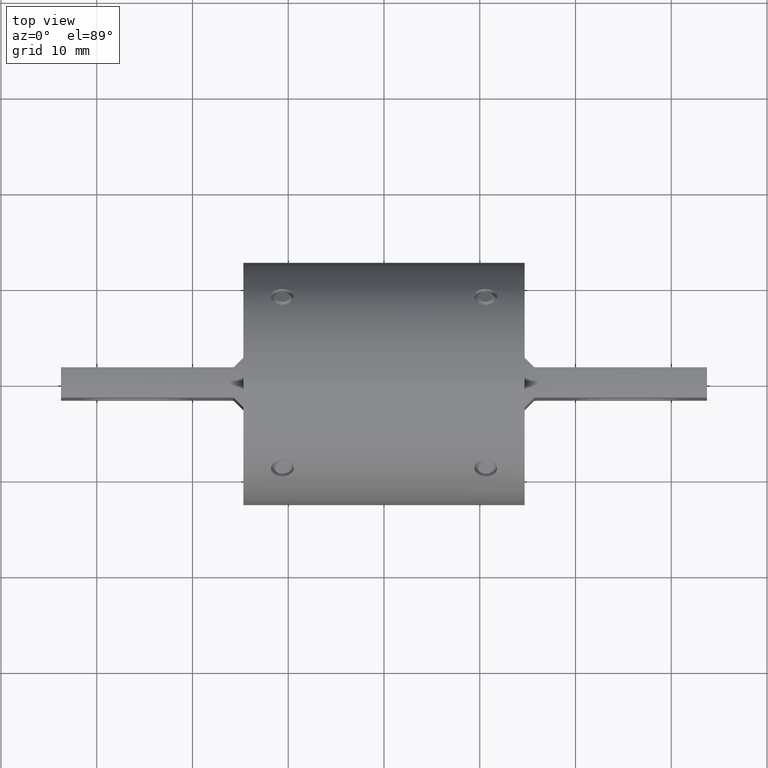
[diagram: clean part render]
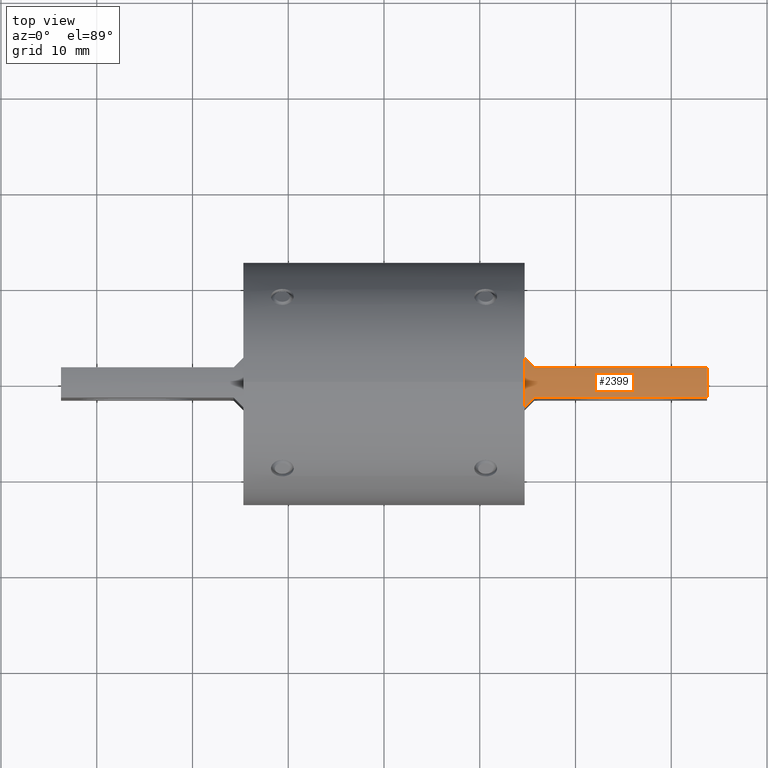
[diagram: same view with one face highlighted and labeled with its STEP entity id]
A machine part, top view. The second image highlights one B-rep face of the part: STEP entity #2399.
In plain terms, the highlighted cylindrical surface (partial cylindrical patch) has radius 9.4234 mm, axis along (1, 0, 0).
Its self-contained STEP definition (entity closure, byte-faithful):
#34 = VERTEX_POINT ( 'NONE', #3655 ) ;
#62 = VERTEX_POINT ( 'NONE', #4473 ) ;
#158 = EDGE_CURVE ( 'NONE', #2267, #1606, #5316, .T. ) ;
#220 = DIRECTION ( 'NONE',  ( 0.0000000000000000000, -1.856119031849641800E-016, -1.000000000000000000 ) ) ;
#247 = CARTESIAN_POINT ( 'NONE',  ( 0.6181000000000007600, -0.06249999999999995800, 0.3656976209930821700 ) ) ;
#321 = CARTESIAN_POINT ( 'NONE',  ( 0.5780999999999999500, 0.0000000000000000000, 0.0000000000000000000 ) ) ;
#344 = ORIENTED_EDGE ( 'NONE', *, *, #1621, .F. ) ;
#403 = CARTESIAN_POINT ( 'NONE',  ( 0.5780999999999999500, 0.1025000000000001300, 0.3565596023107495700 ) ) ;
#517 = AXIS2_PLACEMENT_3D ( 'NONE', #638, #3166, #220 ) ;
#590 = DIRECTION ( 'NONE',  ( 0.0000000000000000000, -1.856119031849641800E-016, -1.000000000000000000 ) ) ;
#638 = CARTESIAN_POINT ( 'NONE',  ( 0.5780999999999999500, 0.0000000000000000000, 0.0000000000000000000 ) ) ;
#868 = LINE ( 'NONE', #4555, #5314 ) ;
#1016 = CARTESIAN_POINT ( 'NONE',  ( 1.328100000000000100, 0.0000000000000000000, 0.0000000000000000000 ) ) ;
#1194 = CARTESIAN_POINT ( 'NONE',  ( 0.5912579185385227200, -0.08934208146147762400, 0.3603421021830239800 ) ) ;
#1606 = VERTEX_POINT ( 'NONE', #1644 ) ;
#1621 = EDGE_CURVE ( 'NONE', #3575, #2396, #4029, .T. ) ;
#1644 = CARTESIAN_POINT ( 'NONE',  ( 0.6181000000000007600, -0.06249999999999995800, 0.3656976209930821700 ) ) ;
#1677 = EDGE_CURVE ( 'NONE', #3575, #62, #4387, .T. ) ;
#2215 = ORIENTED_EDGE ( 'NONE', *, *, #3486, .T. ) ;
#2267 = VERTEX_POINT ( 'NONE', #2811 ) ;
#2396 = VERTEX_POINT ( 'NONE', #2483 ) ;
#2399 = ADVANCED_FACE ( 'NONE', ( #4252 ), #3802, .T. ) ;
#2470 = EDGE_LOOP ( 'NONE', ( #4711, #344, #3457, #3390, #5067, #2215 ) ) ;
#2474 = DIRECTION ( 'NONE',  ( 1.000000000000000000, 0.0000000000000000000, 0.0000000000000000000 ) ) ;
#2483 = CARTESIAN_POINT ( 'NONE',  ( 1.328100000000000100, 0.06249999999999990300, 0.3656976209930821200 ) ) ;
#2606 = AXIS2_PLACEMENT_3D ( 'NONE', #321, #5377, #5233 ) ;
#2696 = CARTESIAN_POINT ( 'NONE',  ( 0.6181000000000007600, 0.06249999999999982000, 0.3656976209930821200 ) ) ;
#2764 = CARTESIAN_POINT ( 'NONE',  ( 0.5780999999999999500, -0.1025000000000002000, 0.3565596023107495700 ) ) ;
#2811 = CARTESIAN_POINT ( 'NONE',  ( 0.5780999999999999500, -0.1025000000000002000, 0.3565596023107495700 ) ) ;
#3122 = EDGE_CURVE ( 'NONE', #2396, #34, #5422, .T. ) ;
#3166 = DIRECTION ( 'NONE',  ( 1.000000000000000000, 0.0000000000000000000, 0.0000000000000000000 ) ) ;
#3329 = CARTESIAN_POINT ( 'NONE',  ( 0.5912579185385226100, 0.08934208146147759600, 0.3603421021830239800 ) ) ;
#3390 = ORIENTED_EDGE ( 'NONE', *, *, #4978, .T. ) ;
#3457 = ORIENTED_EDGE ( 'NONE', *, *, #1677, .T. ) ;
#3486 = EDGE_CURVE ( 'NONE', #1606, #34, #868, .T. ) ;
#3575 = VERTEX_POINT ( 'NONE', #3789 ) ;
#3655 = CARTESIAN_POINT ( 'NONE',  ( 1.328100000000000100, -0.06249999999999995800, 0.3656976209930821700 ) ) ;
#3656 = AXIS2_PLACEMENT_3D ( 'NONE', #1016, #4776, #590 ) ;
#3789 = CARTESIAN_POINT ( 'NONE',  ( 0.6181000000000007600, 0.06249999999999982000, 0.3656976209930821200 ) ) ;
#3802 = CYLINDRICAL_SURFACE ( 'NONE', #2606, 0.3709999999999998900 ) ;
#4029 = LINE ( 'NONE', #4836, #5129 ) ;
#4165 = CARTESIAN_POINT ( 'NONE',  ( 0.6046048662956359200, 0.07599513370436442000, 0.3633912186319393500 ) ) ;
#4240 = DIRECTION ( 'NONE',  ( 1.000000000000000000, 0.0000000000000000000, 0.0000000000000000000 ) ) ;
#4252 = FACE_OUTER_BOUND ( 'NONE', #2470, .T. ) ;
#4387 =( BOUNDED_CURVE ( )  B_SPLINE_CURVE ( 3, ( #2696, #4165, #3329, #403 ),
 .UNSPECIFIED., .F., .T. ) 
 B_SPLINE_CURVE_WITH_KNOTS ( ( 4, 4 ),
 ( 1.740067122859722600, 1.850717950187012400 ),
 .UNSPECIFIED. ) 
 CURVE ( )  GEOMETRIC_REPRESENTATION_ITEM ( )  RATIONAL_B_SPLINE_CURVE ( ( 1.000000000000000000, 0.9989799597610233800, 0.9989799597610233800, 1.000000000000000000 ) ) 
 REPRESENTATION_ITEM ( '' )  );
#4473 = CARTESIAN_POINT ( 'NONE',  ( 0.5780999999999999500, 0.1025000000000001300, 0.3565596023107495700 ) ) ;
#4555 = CARTESIAN_POINT ( 'NONE',  ( 0.5780999999999999500, -0.06249999999999995800, 0.3656976209930821700 ) ) ;
#4711 = ORIENTED_EDGE ( 'NONE', *, *, #3122, .F. ) ;
#4776 = DIRECTION ( 'NONE',  ( 1.000000000000000000, 0.0000000000000000000, 0.0000000000000000000 ) ) ;
#4836 = CARTESIAN_POINT ( 'NONE',  ( 0.5780999999999999500, 0.06249999999999982000, 0.3656976209930821200 ) ) ;
#4884 = CARTESIAN_POINT ( 'NONE',  ( 0.6046048662956362600, -0.07599513370436442000, 0.3633912186319393500 ) ) ;
#4978 = EDGE_CURVE ( 'NONE', #62, #2267, #5274, .T. ) ;
#5067 = ORIENTED_EDGE ( 'NONE', *, *, #158, .T. ) ;
#5129 = VECTOR ( 'NONE', #4240, 39.37007874015748100 ) ;
#5233 = DIRECTION ( 'NONE',  ( 0.0000000000000000000, -1.856119031849641800E-016, -1.000000000000000000 ) ) ;
#5274 = CIRCLE ( 'NONE', #517, 0.3709999999999998900 ) ;
#5314 = VECTOR ( 'NONE', #2474, 39.37007874015748100 ) ;
#5316 =( BOUNDED_CURVE ( )  B_SPLINE_CURVE ( 3, ( #2764, #1194, #4884, #247 ),
 .UNSPECIFIED., .F., .T. ) 
 B_SPLINE_CURVE_WITH_KNOTS ( ( 4, 4 ),
 ( 4.432467356992574100, 4.543118184319864000 ),
 .UNSPECIFIED. ) 
 CURVE ( )  GEOMETRIC_REPRESENTATION_ITEM ( )  RATIONAL_B_SPLINE_CURVE ( ( 1.000000000000000000, 0.9989799597610233800, 0.9989799597610233800, 1.000000000000000000 ) ) 
 REPRESENTATION_ITEM ( '' )  );
#5377 = DIRECTION ( 'NONE',  ( 1.000000000000000000, 0.0000000000000000000, 0.0000000000000000000 ) ) ;
#5422 = CIRCLE ( 'NONE', #3656, 0.3709999999999998900 ) ;